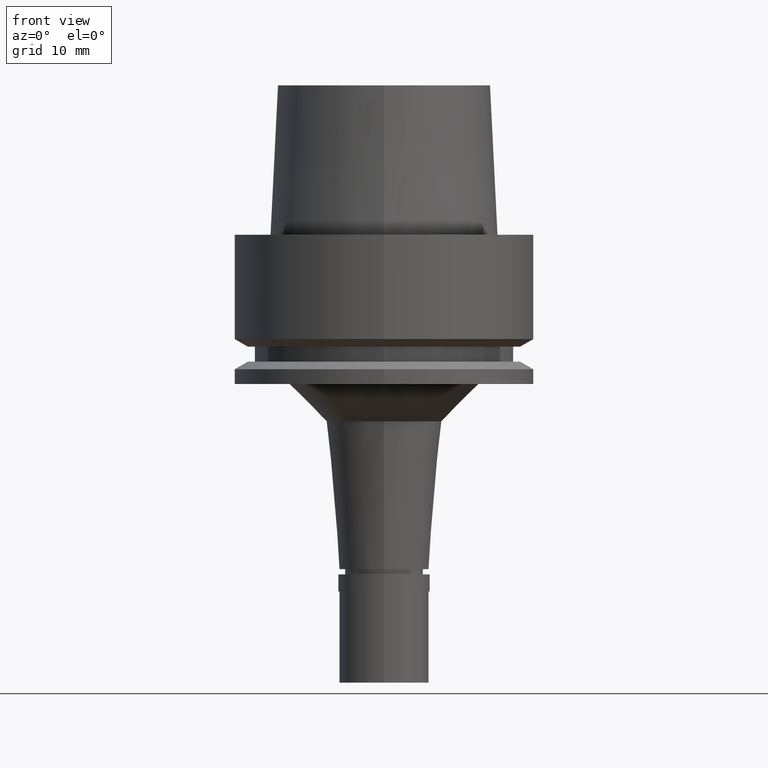
[diagram: clean part render]
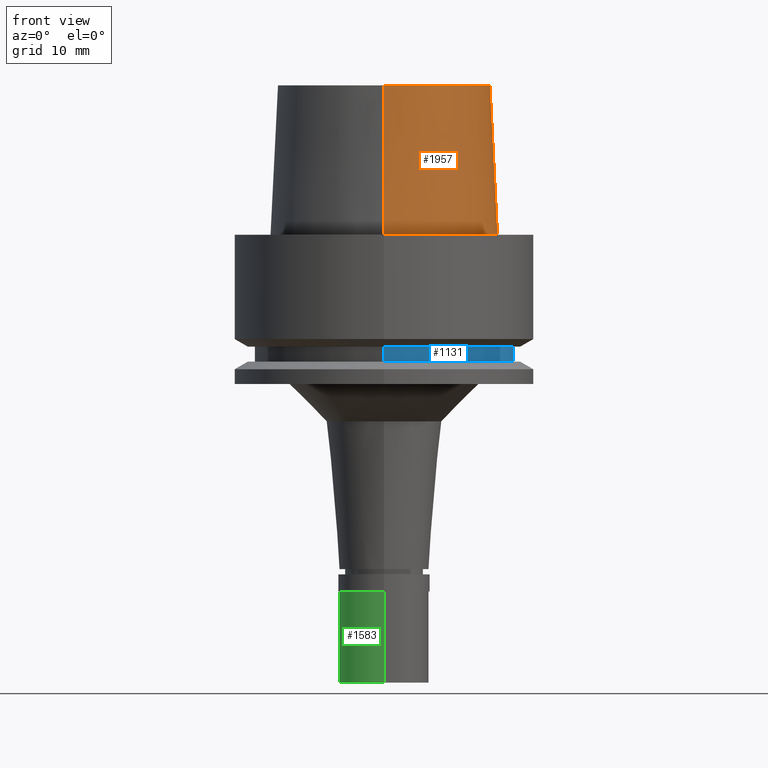
[diagram: same view with three faces highlighted in distinct colors, each labeled with its STEP entity id]
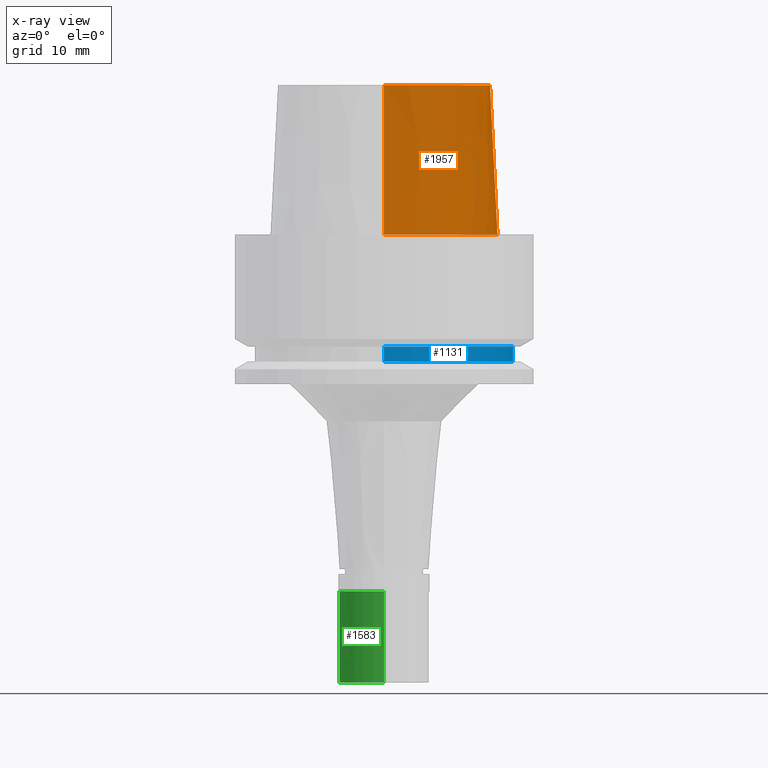
[diagram: x-ray of the same camera — body ghosted, the three highlighted faces saturated]
A machine part, front view with three faces highlighted in distinct colors.
The next image is the same camera in x-ray (body ghosted, the three faces saturated) — at least one of them is partly hidden behind the body in this view.
Their STEP definitions:

[orange] entity #1957 — the highlighted conical surface has half-angle 2.862 deg.
#15 = DIRECTION ( 'NONE',  ( 0.0000000000000000000, -1.000000000000000000, 0.0000000000000000000 ) ) ;
#157 = CARTESIAN_POINT ( 'NONE',  ( 0.0000000000000000000, 0.0000000000000000000, 6.821210263297000155E-13 ) ) ;
#342 = VERTEX_POINT ( 'NONE', #2218 ) ;
#351 = CARTESIAN_POINT ( 'NONE',  ( 0.0000000000000000000, 14.20000146305999955, 20.00000000000000000 ) ) ;
#406 = CARTESIAN_POINT ( 'NONE',  ( 0.0000000000000000000, 0.0000000000000000000, 10.00000000000000000 ) ) ;
#420 = AXIS2_PLACEMENT_3D ( 'NONE', #675, #1514, #1732 ) ;
#442 = EDGE_LOOP ( 'NONE', ( #1421, #2085, #2388, #1943 ) ) ;
#593 = VERTEX_POINT ( 'NONE', #1914 ) ;
#675 = CARTESIAN_POINT ( 'NONE',  ( 0.0000000000000000000, 0.0000000000000000000, 20.00000000000000000 ) ) ;
#764 = DIRECTION ( 'NONE',  ( 0.0000000000000000000, 0.04993752584496928548, -0.9987523434327867378 ) ) ;
#810 = VERTEX_POINT ( 'NONE', #2414 ) ;
#1085 = CARTESIAN_POINT ( 'NONE',  ( 0.0000000000000000000, -14.20000146305999955, 20.00000000000000000 ) ) ;
#1295 = VERTEX_POINT ( 'NONE', #1085 ) ;
#1332 = EDGE_CURVE ( 'NONE', #1295, #593, #1718, .T. ) ;
#1355 = EDGE_CURVE ( 'NONE', #342, #1295, #1913, .T. ) ;
#1421 = ORIENTED_EDGE ( 'NONE', *, *, #1355, .T. ) ;
#1448 = FACE_OUTER_BOUND ( 'NONE', #442, .T. ) ;
#1514 = DIRECTION ( 'NONE',  ( 0.0000000000000000000, 0.0000000000000000000, -1.000000000000000000 ) ) ;
#1718 = LINE ( 'NONE', #2546, #2393 ) ;
#1732 = DIRECTION ( 'NONE',  ( 0.0000000000000000000, 1.000000000000000000, 0.0000000000000000000 ) ) ;
#1790 = LINE ( 'NONE', #351, #2077 ) ;
#1832 = DIRECTION ( 'NONE',  ( 0.0000000000000000000, 0.0000000000000000000, 1.000000000000000000 ) ) ;
#1857 = CIRCLE ( 'NONE', #1900, 15.19999963424000100 ) ;
#1900 = AXIS2_PLACEMENT_3D ( 'NONE', #157, #1832, #2553 ) ;
#1913 = CIRCLE ( 'NONE', #420, 14.20000146305999955 ) ;
#1914 = CARTESIAN_POINT ( 'NONE',  ( 0.0000000000000000000, -15.19999963424000100, 3.801403636316999971E-13 ) ) ;
#1940 = DIRECTION ( 'NONE',  ( 0.0000000000000000000, -0.04993752584496928548, -0.9987523434327867378 ) ) ;
#1943 = ORIENTED_EDGE ( 'NONE', *, *, #2440, .F. ) ;
#1957 = ADVANCED_FACE ( 'NONE', ( #1448 ), #2053, .T. ) ;
#2053 = CONICAL_SURFACE ( 'NONE', #2400, 14.70000054865000116, 0.04995830450907576964 ) ;
#2077 = VECTOR ( 'NONE', #764, 999.9999999999998863 ) ;
#2085 = ORIENTED_EDGE ( 'NONE', *, *, #1332, .T. ) ;
#2218 = CARTESIAN_POINT ( 'NONE',  ( 0.0000000000000000000, 14.20000146305999955, 20.00000000000000000 ) ) ;
#2388 = ORIENTED_EDGE ( 'NONE', *, *, #2594, .T. ) ;
#2393 = VECTOR ( 'NONE', #1940, 999.9999999999998863 ) ;
#2400 = AXIS2_PLACEMENT_3D ( 'NONE', #406, #2470, #15 ) ;
#2414 = CARTESIAN_POINT ( 'NONE',  ( 0.0000000000000000000, 15.19999963424000100, 3.801403636316999971E-13 ) ) ;
#2440 = EDGE_CURVE ( 'NONE', #342, #810, #1790, .T. ) ;
#2470 = DIRECTION ( 'NONE',  ( 0.0000000000000000000, 0.0000000000000000000, -1.000000000000000000 ) ) ;
#2546 = CARTESIAN_POINT ( 'NONE',  ( 0.0000000000000000000, -14.20000146305999955, 20.00000000000000000 ) ) ;
#2553 = DIRECTION ( 'NONE',  ( 0.0000000000000000000, -1.000000000000000000, 0.0000000000000000000 ) ) ;
#2594 = EDGE_CURVE ( 'NONE', #593, #810, #1857, .T. ) ;

[blue] entity #1131 — the highlighted cylindrical surface (partial cylindrical patch) has radius 17.4 mm, axis along (0, 0, 1).
#60 = VECTOR ( 'NONE', #2601, 1000.000000000000000 ) ;
#287 = EDGE_CURVE ( 'NONE', #565, #1120, #369, .T. ) ;
#290 = DIRECTION ( 'NONE',  ( 0.0000000000000000000, 0.0000000000000000000, -1.000000000000000000 ) ) ;
#352 = DIRECTION ( 'NONE',  ( 0.0000000000000000000, 0.0000000000000000000, -1.000000000000000000 ) ) ;
#369 = LINE ( 'NONE', #1578, #1375 ) ;
#429 = EDGE_LOOP ( 'NONE', ( #689, #1126, #1137, #1472 ) ) ;
#565 = VERTEX_POINT ( 'NONE', #2287 ) ;
#619 = CARTESIAN_POINT ( 'NONE',  ( 0.0000000000000000000, 0.0000000000000000000, -59.79999999999999716 ) ) ;
#689 = ORIENTED_EDGE ( 'NONE', *, *, #1489, .T. ) ;
#745 = LINE ( 'NONE', #977, #60 ) ;
#758 = DIRECTION ( 'NONE',  ( 0.0000000000000000000, -1.000000000000000000, 0.0000000000000000000 ) ) ;
#809 = DIRECTION ( 'NONE',  ( 0.0000000000000000000, 0.0000000000000000000, 1.000000000000000000 ) ) ;
#823 = AXIS2_PLACEMENT_3D ( 'NONE', #2397, #290, #1537 ) ;
#897 = EDGE_CURVE ( 'NONE', #2672, #1651, #745, .T. ) ;
#924 = EDGE_CURVE ( 'NONE', #1120, #1651, #1236, .T. ) ;
#977 = CARTESIAN_POINT ( 'NONE',  ( 0.0000000000000000000, 17.39999999999999858, -15.00000000000000000 ) ) ;
#1062 = AXIS2_PLACEMENT_3D ( 'NONE', #1797, #2628, #758 ) ;
#1120 = VERTEX_POINT ( 'NONE', #1661 ) ;
#1126 = ORIENTED_EDGE ( 'NONE', *, *, #287, .T. ) ;
#1131 = ADVANCED_FACE ( 'NONE', ( #1854 ), #2684, .T. ) ;
#1137 = ORIENTED_EDGE ( 'NONE', *, *, #924, .T. ) ;
#1236 = CIRCLE ( 'NONE', #1062, 17.39999999999999858 ) ;
#1375 = VECTOR ( 'NONE', #352, 1000.000000000000000 ) ;
#1472 = ORIENTED_EDGE ( 'NONE', *, *, #897, .F. ) ;
#1489 = EDGE_CURVE ( 'NONE', #2672, #565, #2012, .T. ) ;
#1537 = DIRECTION ( 'NONE',  ( 0.0000000000000000000, 1.000000000000000000, 0.0000000000000000000 ) ) ;
#1578 = CARTESIAN_POINT ( 'NONE',  ( 0.0000000000000000000, -17.39999999999999858, -15.00000000000000000 ) ) ;
#1651 = VERTEX_POINT ( 'NONE', #2472 ) ;
#1661 = CARTESIAN_POINT ( 'NONE',  ( 0.0000000000000000000, -17.39999999999999858, -17.00000000000000000 ) ) ;
#1670 = AXIS2_PLACEMENT_3D ( 'NONE', #619, #809, #2487 ) ;
#1797 = CARTESIAN_POINT ( 'NONE',  ( 0.0000000000000000000, 0.0000000000000000000, -17.00000000000000000 ) ) ;
#1854 = FACE_OUTER_BOUND ( 'NONE', #429, .T. ) ;
#2012 = CIRCLE ( 'NONE', #823, 17.39999999999999858 ) ;
#2287 = CARTESIAN_POINT ( 'NONE',  ( 0.0000000000000000000, -17.39999999999999858, -15.00000000000000000 ) ) ;
#2397 = CARTESIAN_POINT ( 'NONE',  ( 0.0000000000000000000, 0.0000000000000000000, -15.00000000000000000 ) ) ;
#2472 = CARTESIAN_POINT ( 'NONE',  ( 0.0000000000000000000, 17.39999999999999858, -17.00000000000000000 ) ) ;
#2487 = DIRECTION ( 'NONE',  ( 0.0000000000000000000, 1.000000000000000000, 0.0000000000000000000 ) ) ;
#2504 = CARTESIAN_POINT ( 'NONE',  ( 0.0000000000000000000, 17.39999999999999858, -15.00000000000000000 ) ) ;
#2601 = DIRECTION ( 'NONE',  ( 0.0000000000000000000, 0.0000000000000000000, -1.000000000000000000 ) ) ;
#2628 = DIRECTION ( 'NONE',  ( 0.0000000000000000000, 0.0000000000000000000, 1.000000000000000000 ) ) ;
#2672 = VERTEX_POINT ( 'NONE', #2504 ) ;
#2684 = CYLINDRICAL_SURFACE ( 'NONE', #1670, 17.39999999999999858 ) ;

[green] entity #1583 — the highlighted cylindrical surface (partial cylindrical patch) has radius 6 mm, axis along (0, 0, 1).
#34 = CARTESIAN_POINT ( 'NONE',  ( 0.0000000000000000000, 6.000000000000000000, -2.299999999999999822 ) ) ;
#42 = EDGE_CURVE ( 'NONE', #1495, #783, #272, .T. ) ;
#185 = LINE ( 'NONE', #2460, #1541 ) ;
#212 = DIRECTION ( 'NONE',  ( 0.0000000000000000000, 0.0000000000000000000, 1.000000000000000000 ) ) ;
#272 = CIRCLE ( 'NONE', #1990, 6.000000000000000000 ) ;
#340 = DIRECTION ( 'NONE',  ( 0.0000000000000000000, 1.000000000000000000, 0.0000000000000000000 ) ) ;
#374 = ORIENTED_EDGE ( 'NONE', *, *, #432, .F. ) ;
#432 = EDGE_CURVE ( 'NONE', #1495, #2295, #185, .T. ) ;
#471 = LINE ( 'NONE', #34, #1132 ) ;
#514 = CARTESIAN_POINT ( 'NONE',  ( 0.0000000000000000000, -6.000000000000000000, -2.299999999999999822 ) ) ;
#523 = AXIS2_PLACEMENT_3D ( 'NONE', #2506, #212, #2688 ) ;
#618 = AXIS2_PLACEMENT_3D ( 'NONE', #2570, #2219, #340 ) ;
#650 = CARTESIAN_POINT ( 'NONE',  ( 0.0000000000000000000, 6.000000000000000000, -2.299999999999999822 ) ) ;
#688 = DIRECTION ( 'NONE',  ( 0.0000000000000000000, 0.0000000000000000000, -1.000000000000000000 ) ) ;
#783 = VERTEX_POINT ( 'NONE', #650 ) ;
#851 = ORIENTED_EDGE ( 'NONE', *, *, #1205, .T. ) ;
#1040 = CIRCLE ( 'NONE', #523, 6.000000000000000000 ) ;
#1132 = VECTOR ( 'NONE', #688, 1000.000000000000000 ) ;
#1205 = EDGE_CURVE ( 'NONE', #783, #1734, #471, .T. ) ;
#1210 = CARTESIAN_POINT ( 'NONE',  ( 0.0000000000000000000, 6.000000000000000000, -14.50000000000000000 ) ) ;
#1393 = CYLINDRICAL_SURFACE ( 'NONE', #618, 6.000000000000000000 ) ;
#1408 = ORIENTED_EDGE ( 'NONE', *, *, #42, .T. ) ;
#1481 = CARTESIAN_POINT ( 'NONE',  ( 0.0000000000000000000, 0.0000000000000000000, -2.299999999999999822 ) ) ;
#1495 = VERTEX_POINT ( 'NONE', #514 ) ;
#1541 = VECTOR ( 'NONE', #2689, 1000.000000000000000 ) ;
#1555 = ORIENTED_EDGE ( 'NONE', *, *, #1967, .T. ) ;
#1583 = ADVANCED_FACE ( 'NONE', ( #2622 ), #1393, .T. ) ;
#1734 = VERTEX_POINT ( 'NONE', #1210 ) ;
#1853 = DIRECTION ( 'NONE',  ( 0.0000000000000000000, -1.000000000000000000, 0.0000000000000000000 ) ) ;
#1967 = EDGE_CURVE ( 'NONE', #1734, #2295, #1040, .T. ) ;
#1990 = AXIS2_PLACEMENT_3D ( 'NONE', #1481, #2318, #1853 ) ;
#2092 = EDGE_LOOP ( 'NONE', ( #1555, #374, #1408, #851 ) ) ;
#2219 = DIRECTION ( 'NONE',  ( 0.0000000000000000000, 0.0000000000000000000, 1.000000000000000000 ) ) ;
#2295 = VERTEX_POINT ( 'NONE', #2369 ) ;
#2318 = DIRECTION ( 'NONE',  ( 0.0000000000000000000, 0.0000000000000000000, -1.000000000000000000 ) ) ;
#2369 = CARTESIAN_POINT ( 'NONE',  ( 0.0000000000000000000, -6.000000000000000000, -14.50000000000000000 ) ) ;
#2460 = CARTESIAN_POINT ( 'NONE',  ( 0.0000000000000000000, -6.000000000000000000, -2.299999999999999822 ) ) ;
#2506 = CARTESIAN_POINT ( 'NONE',  ( 0.0000000000000000000, 0.0000000000000000000, -14.50000000000000000 ) ) ;
#2570 = CARTESIAN_POINT ( 'NONE',  ( 0.0000000000000000000, 0.0000000000000000000, -15.22500000000000142 ) ) ;
#2622 = FACE_OUTER_BOUND ( 'NONE', #2092, .T. ) ;
#2688 = DIRECTION ( 'NONE',  ( 0.0000000000000000000, 1.000000000000000000, 0.0000000000000000000 ) ) ;
#2689 = DIRECTION ( 'NONE',  ( 0.0000000000000000000, 0.0000000000000000000, -1.000000000000000000 ) ) ;